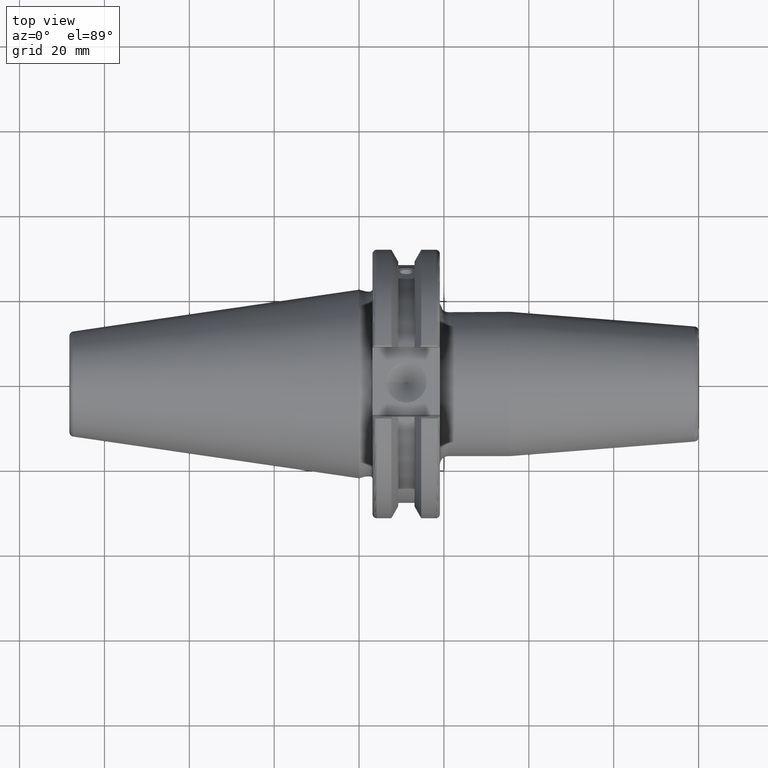
[diagram: clean part render]
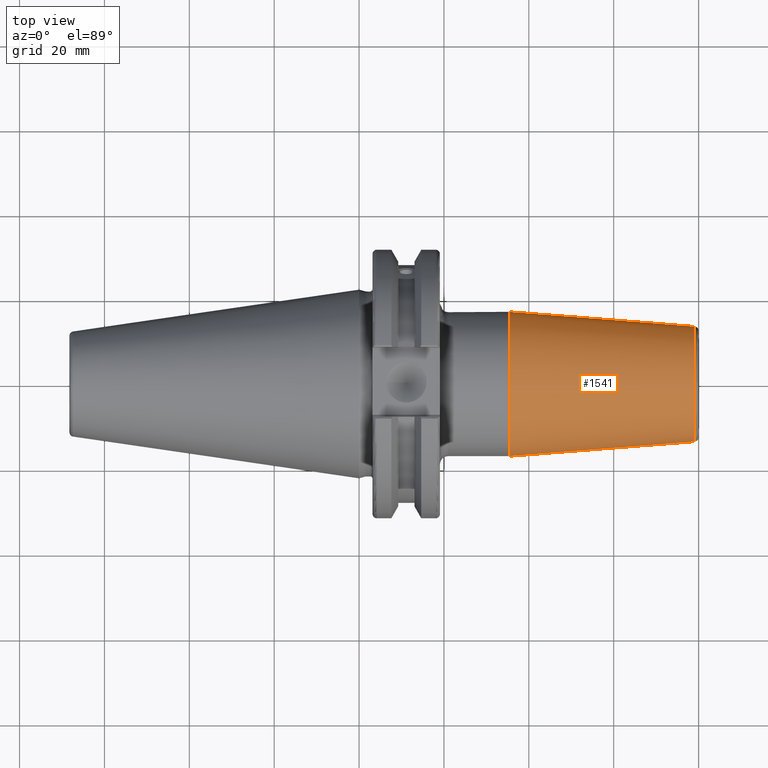
[diagram: same view with one face highlighted and labeled with its STEP entity id]
A machine part, top view. The second image highlights one B-rep face of the part: STEP entity #1541.
In plain terms, the highlighted conical surface has half-angle 4.5 deg.
Its self-contained STEP definition (entity closure, byte-faithful):
#180=FACE_OUTER_BOUND('',#271,.T.);
#271=EDGE_LOOP('',(#1062,#1063,#1064,#1065,#1066));
#379=LINE('',#2337,#477);
#477=VECTOR('',#1870,15.25);
#575=CIRCLE('',#1661,13.5725268420749);
#576=CIRCLE('',#1662,13.5725268420749);
#577=CIRCLE('',#1664,17.);
#653=VERTEX_POINT('',#2330);
#654=VERTEX_POINT('',#2332);
#655=VERTEX_POINT('',#2336);
#814=EDGE_CURVE('',#653,#654,#575,.T.);
#815=EDGE_CURVE('',#654,#653,#576,.T.);
#816=EDGE_CURVE('',#654,#655,#379,.T.);
#817=EDGE_CURVE('',#655,#655,#577,.T.);
#1062=ORIENTED_EDGE('',*,*,#815,.F.);
#1063=ORIENTED_EDGE('',*,*,#816,.T.);
#1064=ORIENTED_EDGE('',*,*,#817,.T.);
#1065=ORIENTED_EDGE('',*,*,#816,.F.);
#1066=ORIENTED_EDGE('',*,*,#814,.F.);
#1523=CONICAL_SURFACE('',#1663,15.25,0.0785398163397453);
#1541=ADVANCED_FACE('',(#180),#1523,.T.);
#1661=AXIS2_PLACEMENT_3D('',#2333,#1864,#1865);
#1662=AXIS2_PLACEMENT_3D('',#2334,#1866,#1867);
#1663=AXIS2_PLACEMENT_3D('',#2335,#1868,#1869);
#1664=AXIS2_PLACEMENT_3D('',#2338,#1871,#1872);
#1864=DIRECTION('center_axis',(1.,0.,0.));
#1865=DIRECTION('ref_axis',(0.,-1.,3.06161699786838E-17));
#1866=DIRECTION('center_axis',(1.,0.,0.));
#1867=DIRECTION('ref_axis',(0.,-1.,3.06161699786838E-17));
#1868=DIRECTION('center_axis',(-1.,0.,0.));
#1869=DIRECTION('ref_axis',(0.,1.,0.));
#1870=DIRECTION('',(-0.996917333733128,-0.0784590957278454,-9.60846804471016E-18));
#1871=DIRECTION('center_axis',(1.,0.,0.));
#1872=DIRECTION('ref_axis',(0.,0.,-1.));
#2330=CARTESIAN_POINT('',(79.0784590957279,-1.66215515534886E-15,13.5725268420749));
#2332=CARTESIAN_POINT('',(79.0784590957279,-13.5725268420749,-1.66215515534886E-15));
#2333=CARTESIAN_POINT('Origin',(79.0784590957279,0.,-2.07769394418607E-15));
#2334=CARTESIAN_POINT('Origin',(79.0784590957279,0.,-2.07769394418607E-15));
#2335=CARTESIAN_POINT('Origin',(57.7641417116944,0.,0.));
#2336=CARTESIAN_POINT('',(35.5282834233888,-17.,-2.0818995585505E-15));
#2337=CARTESIAN_POINT('',(57.7641417116944,-15.25,-1.86758636869971E-15));
#2338=CARTESIAN_POINT('Origin',(35.5282834233888,0.,0.));